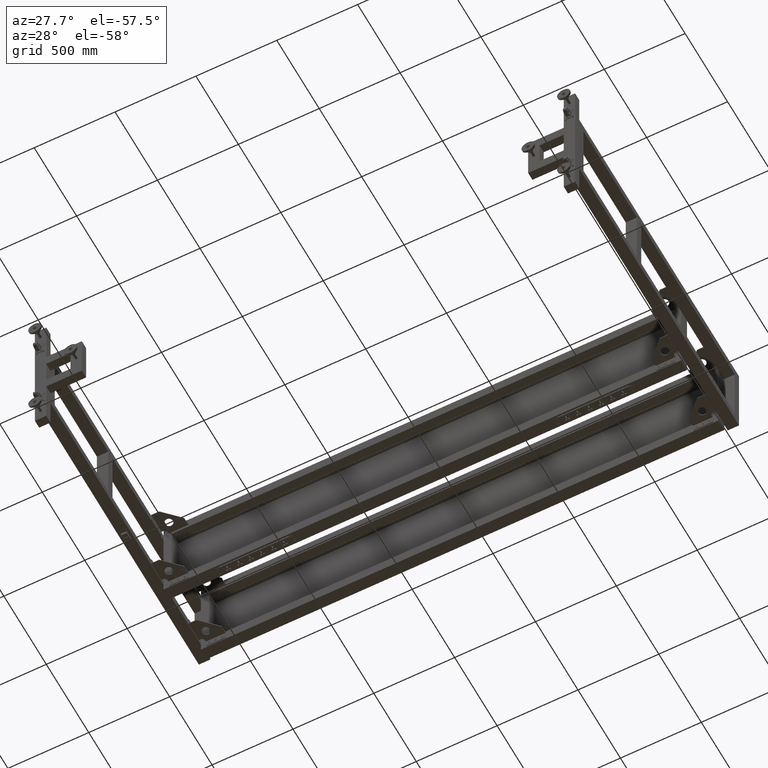
[diagram: clean part render]
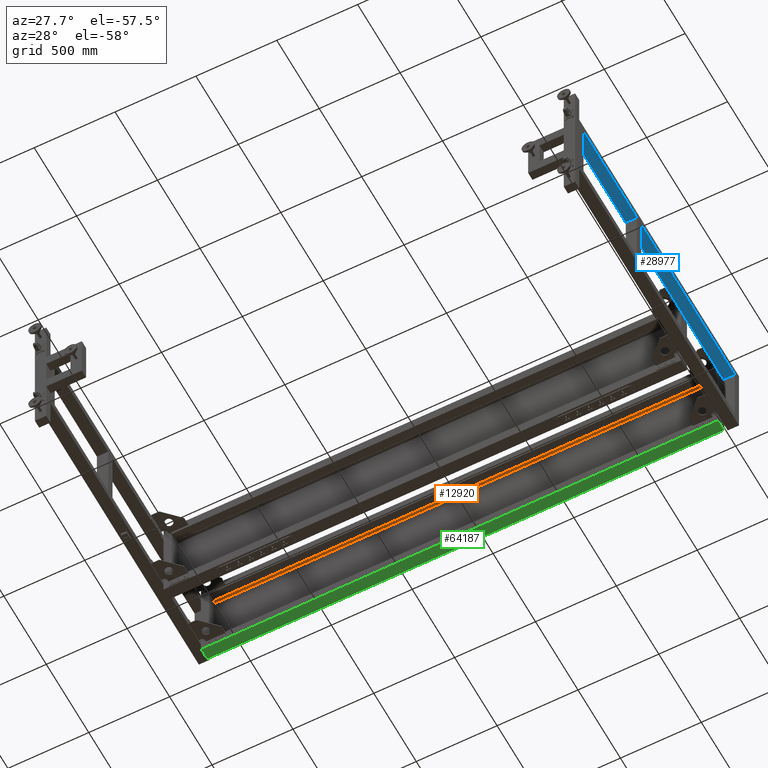
[diagram: same view with three faces highlighted in distinct colors, each labeled with its STEP entity id]
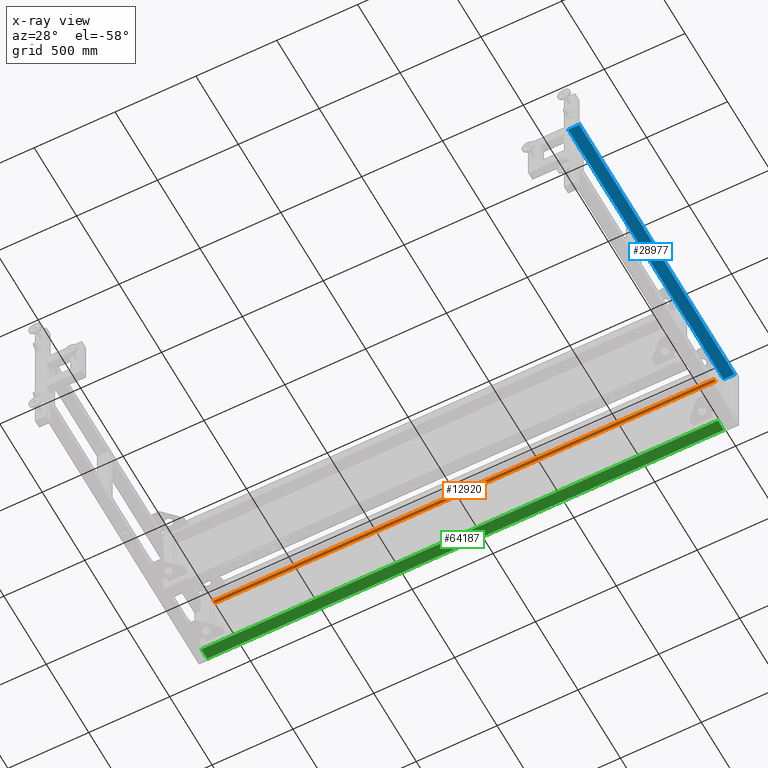
[diagram: x-ray of the same camera — body ghosted, the three highlighted faces saturated]
A machine part, auxiliary view with three faces highlighted in distinct colors.
The next image is the same camera in x-ray (body ghosted, the three faces saturated) — at least one of them is partly hidden behind the body in this view.
Their STEP definitions:

[orange] entity #12920 — the highlighted planar face has unit normal (0, -0, -1).
#2834 = EDGE_CURVE ( 'NONE', #75048, #46977, #12819, .T. ) ;
#5459 = DIRECTION ( 'NONE',  ( 0.000000000000000000, -1.000000000000000000, 2.000602769257179879E-15 ) ) ;
#6646 = CARTESIAN_POINT ( 'NONE',  ( 1880.256801884696642, 995.4410804020137675, 228.5000000000011653 ) ) ;
#6859 = DIRECTION ( 'NONE',  ( 9.089252880859524359E-31, -2.000602769257179879E-15, -1.000000000000000000 ) ) ;
#11211 = VECTOR ( 'NONE', #75825, 1000.000000000000000 ) ;
#12819 = LINE ( 'NONE', #6646, #11211 ) ;
#12920 = ADVANCED_FACE ( 'NONE', ( #43316 ), #26117, .T. ) ;
#14433 = CARTESIAN_POINT ( 'NONE',  ( -1216.601776759067889, 995.4310804020125261, 228.5000000000011653 ) ) ;
#14887 = CARTESIAN_POINT ( 'NONE',  ( -1216.601776759067889, 976.9410804020126307, 228.5000000000011369 ) ) ;
#15262 = ORIENTED_EDGE ( 'NONE', *, *, #37996, .F. ) ;
#15271 = VECTOR ( 'NONE', #17665, 1000.000000000000000 ) ;
#16519 = EDGE_CURVE ( 'NONE', #46977, #33065, #36105, .T. ) ;
#17665 = DIRECTION ( 'NONE',  ( -1.000000000000000000, -4.543257172554223644E-16, 0.000000000000000000 ) ) ;
#17977 = EDGE_LOOP ( 'NONE', ( #18176, #15262, #29429, #80408 ) ) ;
#18176 = ORIENTED_EDGE ( 'NONE', *, *, #16519, .T. ) ;
#19375 = CARTESIAN_POINT ( 'NONE',  ( -1216.601776759067889, 995.4410804020126307, 228.5000000000011653 ) ) ;
#19569 = CARTESIAN_POINT ( 'NONE',  ( 681.8275125628146043, 995.4410804020138812, 228.5000000000011653 ) ) ;
#23006 = CARTESIAN_POINT ( 'NONE',  ( 1880.256801884696642, 995.4310804020136629, 228.5000000000011653 ) ) ;
#23613 = VECTOR ( 'NONE', #5459, 1000.000000000000000 ) ;
#26117 = PLANE ( 'NONE',  #48832 ) ;
#29429 = ORIENTED_EDGE ( 'NONE', *, *, #72234, .T. ) ;
#32663 = DIRECTION ( 'NONE',  ( -4.543257172554223644E-16, 1.000000000000000000, -2.000602769257179879E-15 ) ) ;
#33065 = VERTEX_POINT ( 'NONE', #14887 ) ;
#36105 = LINE ( 'NONE', #61866, #15271 ) ;
#37996 = EDGE_CURVE ( 'NONE', #38096, #33065, #55393, .T. ) ;
#38096 = VERTEX_POINT ( 'NONE', #14433 ) ;
#43288 = CARTESIAN_POINT ( 'NONE',  ( -518.1724874371853957, 995.4310804020125261, 228.5000000000011653 ) ) ;
#43316 = FACE_OUTER_BOUND ( 'NONE', #17977, .T. ) ;
#46977 = VERTEX_POINT ( 'NONE', #60895 ) ;
#48832 = AXIS2_PLACEMENT_3D ( 'NONE', #19569, #6859, #32663 ) ;
#49805 = DIRECTION ( 'NONE',  ( 1.000000000000000000, 4.311960709090649200E-16, 4.627323453246184469E-32 ) ) ;
#55393 = LINE ( 'NONE', #19375, #23613 ) ;
#59963 = VECTOR ( 'NONE', #49805, 1000.000000000000000 ) ;
#60895 = CARTESIAN_POINT ( 'NONE',  ( 1880.256801884696642, 976.9410804020137675, 228.5000000000011369 ) ) ;
#61866 = CARTESIAN_POINT ( 'NONE',  ( -518.1724874371853957, 976.9410804020126307, 228.5000000000011369 ) ) ;
#72234 = EDGE_CURVE ( 'NONE', #38096, #75048, #73591, .T. ) ;
#73591 = LINE ( 'NONE', #43288, #59963 ) ;
#75048 = VERTEX_POINT ( 'NONE', #23006 ) ;
#75825 = DIRECTION ( 'NONE',  ( 4.543257172554223644E-16, -1.000000000000000000, 2.000602769257179879E-15 ) ) ;
#80408 = ORIENTED_EDGE ( 'NONE', *, *, #2834, .T. ) ;

[blue] entity #28977 — the highlighted planar face has unit normal (0, 0, 1).
#4258 = CARTESIAN_POINT ( 'NONE',  ( 2001.827512562813581, 986.4410804020146770, 199.9999999999999716 ) ) ;
#4766 = AXIS2_PLACEMENT_3D ( 'NONE', #39728, #64719, #38518 ) ;
#6071 = EDGE_CURVE ( 'NONE', #41480, #27843, #72152, .T. ) ;
#6434 = CARTESIAN_POINT ( 'NONE',  ( 1931.827512562814491, -844.5589195979878241, 199.9999999999999716 ) ) ;
#6719 = VERTEX_POINT ( 'NONE', #34304 ) ;
#7246 = LINE ( 'NONE', #6434, #27961 ) ;
#8383 = VECTOR ( 'NONE', #75261, 1000.000000000000000 ) ;
#11316 = CARTESIAN_POINT ( 'NONE',  ( 1931.811469511922496, 926.9410804020122896, 199.9999999999999716 ) ) ;
#11506 = CARTESIAN_POINT ( 'NONE',  ( 2001.827512562814491, -844.5589195979878241, 199.9999999999999716 ) ) ;
#12851 = CARTESIAN_POINT ( 'NONE',  ( 2001.827512562814491, -844.5589195979878241, 199.9999999999999716 ) ) ;
#13546 = FACE_OUTER_BOUND ( 'NONE', #61970, .T. ) ;
#13758 = VERTEX_POINT ( 'NONE', #12851 ) ;
#13983 = VECTOR ( 'NONE', #47999, 1000.000000000000000 ) ;
#17559 = CARTESIAN_POINT ( 'NONE',  ( 1931.827512562814491, 926.9410804020122896, 199.9999999999999716 ) ) ;
#18230 = VECTOR ( 'NONE', #24176, 1000.000000000000000 ) ;
#23012 = VERTEX_POINT ( 'NONE', #25293 ) ;
#23033 = CARTESIAN_POINT ( 'NONE',  ( 1931.827512562814491, 996.9410804020120622, 199.9999999999999716 ) ) ;
#23067 = CARTESIAN_POINT ( 'NONE',  ( 2001.827512562814491, 986.4410804020120622, 199.9999999999999716 ) ) ;
#24176 = DIRECTION ( 'NONE',  ( -1.000000000000000000, -4.543257172554223644E-16, 0.000000000000000000 ) ) ;
#25263 = EDGE_CURVE ( 'NONE', #53390, #13758, #36189, .T. ) ;
#25293 = CARTESIAN_POINT ( 'NONE',  ( 1931.827512562813808, 919.4410804020146770, 199.9999999999999716 ) ) ;
#26394 = DIRECTION ( 'NONE',  ( 1.454325717255422245E-15, -1.000000000000000000, -0.000000000000000000 ) ) ;
#27843 = VERTEX_POINT ( 'NONE', #29458 ) ;
#27961 = VECTOR ( 'NONE', #75615, 1000.000000000000000 ) ;
#28546 = ORIENTED_EDGE ( 'NONE', *, *, #80829, .F. ) ;
#28977 = ADVANCED_FACE ( 'NONE', ( #13546 ), #71267, .F. ) ;
#29458 = CARTESIAN_POINT ( 'NONE',  ( 1931.827512562814491, 926.9410804020122896, 199.9999999999999716 ) ) ;
#31332 = CARTESIAN_POINT ( 'NONE',  ( 1931.811469511922496, 986.4410804020146770, 199.9999999999999716 ) ) ;
#33365 = ORIENTED_EDGE ( 'NONE', *, *, #66135, .T. ) ;
#33782 = VERTEX_POINT ( 'NONE', #62236 ) ;
#34304 = CARTESIAN_POINT ( 'NONE',  ( 1931.827512562814491, -844.5589195979878241, 199.9999999999999716 ) ) ;
#35342 = LINE ( 'NONE', #23067, #40235 ) ;
#36189 = LINE ( 'NONE', #4258, #75433 ) ;
#36816 = ORIENTED_EDGE ( 'NONE', *, *, #73050, .T. ) ;
#37364 = DIRECTION ( 'NONE',  ( 1.000000000000000000, 2.039995195632243709E-15, 0.000000000000000000 ) ) ;
#37511 = VERTEX_POINT ( 'NONE', #11316 ) ;
#38518 = DIRECTION ( 'NONE',  ( -1.000000000000000000, -4.543257172554223644E-16, 0.000000000000000000 ) ) ;
#39728 = CARTESIAN_POINT ( 'NONE',  ( 2001.827512562813581, 986.4410804020146770, 199.9999999999999716 ) ) ;
#40235 = VECTOR ( 'NONE', #79934, 1000.000000000000000 ) ;
#41128 = ORIENTED_EDGE ( 'NONE', *, *, #79875, .T. ) ;
#41480 = VERTEX_POINT ( 'NONE', #59101 ) ;
#41776 = EDGE_CURVE ( 'NONE', #33782, #23012, #43503, .T. ) ;
#43503 = LINE ( 'NONE', #68476, #78876 ) ;
#45057 = ORIENTED_EDGE ( 'NONE', *, *, #41776, .F. ) ;
#47999 = DIRECTION ( 'NONE',  ( 1.454325717255422442E-15, -1.000000000000000000, 0.000000000000000000 ) ) ;
#50755 = LINE ( 'NONE', #11506, #18230 ) ;
#53390 = VERTEX_POINT ( 'NONE', #72026 ) ;
#59101 = CARTESIAN_POINT ( 'NONE',  ( 1931.827512562814491, 986.4410804020145633, 199.9999999999999716 ) ) ;
#61970 = EDGE_LOOP ( 'NONE', ( #41128, #66275, #36816, #33365, #45057, #28546, #77364, #80328 ) ) ;
#62236 = CARTESIAN_POINT ( 'NONE',  ( 1931.811469511922496, 919.4410804020146770, 199.9999999999999716 ) ) ;
#64068 = LINE ( 'NONE', #31332, #72826 ) ;
#64719 = DIRECTION ( 'NONE',  ( 0.000000000000000000, 0.000000000000000000, 1.000000000000000000 ) ) ;
#64866 = EDGE_CURVE ( 'NONE', #27843, #37511, #65906, .T. ) ;
#65906 = LINE ( 'NONE', #17559, #8383 ) ;
#66135 = EDGE_CURVE ( 'NONE', #6719, #23012, #7246, .T. ) ;
#66275 = ORIENTED_EDGE ( 'NONE', *, *, #25263, .T. ) ;
#68476 = CARTESIAN_POINT ( 'NONE',  ( 2001.827512562813581, 919.4410804020147907, 199.9999999999999716 ) ) ;
#71267 = PLANE ( 'NONE',  #4766 ) ;
#72026 = CARTESIAN_POINT ( 'NONE',  ( 2001.827512562814491, 986.4410804020120622, 199.9999999999999716 ) ) ;
#72152 = LINE ( 'NONE', #23033, #13983 ) ;
#72826 = VECTOR ( 'NONE', #26394, 1000.000000000000000 ) ;
#73050 = EDGE_CURVE ( 'NONE', #13758, #6719, #50755, .T. ) ;
#75261 = DIRECTION ( 'NONE',  ( -1.000000000000000000, -8.992142049428443691E-16, 0.000000000000000000 ) ) ;
#75433 = VECTOR ( 'NONE', #79174, 1000.000000000000000 ) ;
#75615 = DIRECTION ( 'NONE',  ( -4.543257172554223644E-16, 1.000000000000000000, 0.000000000000000000 ) ) ;
#77364 = ORIENTED_EDGE ( 'NONE', *, *, #64866, .F. ) ;
#78876 = VECTOR ( 'NONE', #37364, 1000.000000000000000 ) ;
#79174 = DIRECTION ( 'NONE',  ( 1.454325717255422245E-15, -1.000000000000000000, -0.000000000000000000 ) ) ;
#79875 = EDGE_CURVE ( 'NONE', #41480, #53390, #35342, .T. ) ;
#79934 = DIRECTION ( 'NONE',  ( 1.000000000000000000, 4.543257172554223644E-16, 0.000000000000000000 ) ) ;
#80328 = ORIENTED_EDGE ( 'NONE', *, *, #6071, .F. ) ;
#80829 = EDGE_CURVE ( 'NONE', #37511, #33782, #64068, .T. ) ;

[green] entity #64187 — the highlighted planar face has unit normal (0, -0, 1).
#3798 = ORIENTED_EDGE ( 'NONE', *, *, #17690, .F. ) ;
#4194 = CARTESIAN_POINT ( 'NONE',  ( -1266.172487437185964, 926.9410804020142223, -299.9999999999991473 ) ) ;
#4374 = ORIENTED_EDGE ( 'NONE', *, *, #10499, .T. ) ;
#5399 = DIRECTION ( 'NONE',  ( 0.000000000000000000, -1.000000000000000000, -3.603491776919587486E-15 ) ) ;
#10499 = EDGE_CURVE ( 'NONE', #49588, #35650, #62716, .T. ) ;
#14000 = DIRECTION ( 'NONE',  ( 4.543257172554223644E-16, -1.000000000000000000, -3.603491776919587486E-15 ) ) ;
#14801 = VECTOR ( 'NONE', #36594, 1000.000000000000000 ) ;
#17147 = AXIS2_PLACEMENT_3D ( 'NONE', #73535, #23995, #48164 ) ;
#17690 = EDGE_CURVE ( 'NONE', #55914, #67280, #54534, .T. ) ;
#17774 = LINE ( 'NONE', #42762, #14801 ) ;
#23995 = DIRECTION ( 'NONE',  ( 1.637158986173007899E-30, -3.603491776919587486E-15, 1.000000000000000000 ) ) ;
#31863 = EDGE_LOOP ( 'NONE', ( #62189, #3798, #38093, #4374 ) ) ;
#35650 = VERTEX_POINT ( 'NONE', #68784 ) ;
#36594 = DIRECTION ( 'NONE',  ( -1.000000000000000000, -4.543257172554223644E-16, 0.000000000000000000 ) ) ;
#36676 = PLANE ( 'NONE',  #17147 ) ;
#37037 = LINE ( 'NONE', #78827, #67954 ) ;
#37252 = CARTESIAN_POINT ( 'NONE',  ( 1929.827512562814263, 996.9410804020151318, -299.9999999999988631 ) ) ;
#38093 = ORIENTED_EDGE ( 'NONE', *, *, #43640, .F. ) ;
#40960 = VECTOR ( 'NONE', #14000, 1000.000000000000000 ) ;
#42762 = CARTESIAN_POINT ( 'NONE',  ( 1929.827512562814263, 926.9410804020152455, -299.9999999999991473 ) ) ;
#43448 = CARTESIAN_POINT ( 'NONE',  ( -1266.172487437185964, 996.9410804020139949, -299.9999999999988631 ) ) ;
#43640 = EDGE_CURVE ( 'NONE', #49588, #55914, #37037, .T. ) ;
#48164 = DIRECTION ( 'NONE',  ( -4.543257172554223644E-16, 1.000000000000000000, 3.603491776919587486E-15 ) ) ;
#49588 = VERTEX_POINT ( 'NONE', #37252 ) ;
#53343 = VECTOR ( 'NONE', #5399, 1000.000000000000000 ) ;
#54534 = LINE ( 'NONE', #4194, #53343 ) ;
#55914 = VERTEX_POINT ( 'NONE', #43448 ) ;
#62069 = FACE_OUTER_BOUND ( 'NONE', #31863, .T. ) ;
#62189 = ORIENTED_EDGE ( 'NONE', *, *, #75878, .T. ) ;
#62716 = LINE ( 'NONE', #63943, #40960 ) ;
#62831 = DIRECTION ( 'NONE',  ( -1.000000000000000000, -4.543257172554223644E-16, 0.000000000000000000 ) ) ;
#63943 = CARTESIAN_POINT ( 'NONE',  ( 1929.827512562814263, 926.9410804020152455, -299.9999999999991473 ) ) ;
#64187 = ADVANCED_FACE ( 'NONE', ( #62069 ), #36676, .F. ) ;
#67280 = VERTEX_POINT ( 'NONE', #72383 ) ;
#67954 = VECTOR ( 'NONE', #62831, 1000.000000000000000 ) ;
#68784 = CARTESIAN_POINT ( 'NONE',  ( 1929.827512562814263, 926.9410804020152455, -299.9999999999991473 ) ) ;
#72383 = CARTESIAN_POINT ( 'NONE',  ( -1266.172487437185964, 926.9410804020142223, -299.9999999999991473 ) ) ;
#73535 = CARTESIAN_POINT ( 'NONE',  ( 1929.827512562814263, 926.9410804020152455, -299.9999999999991473 ) ) ;
#75878 = EDGE_CURVE ( 'NONE', #35650, #67280, #17774, .T. ) ;
#78827 = CARTESIAN_POINT ( 'NONE',  ( 1929.827512562814263, 996.9410804020151318, -299.9999999999988631 ) ) ;